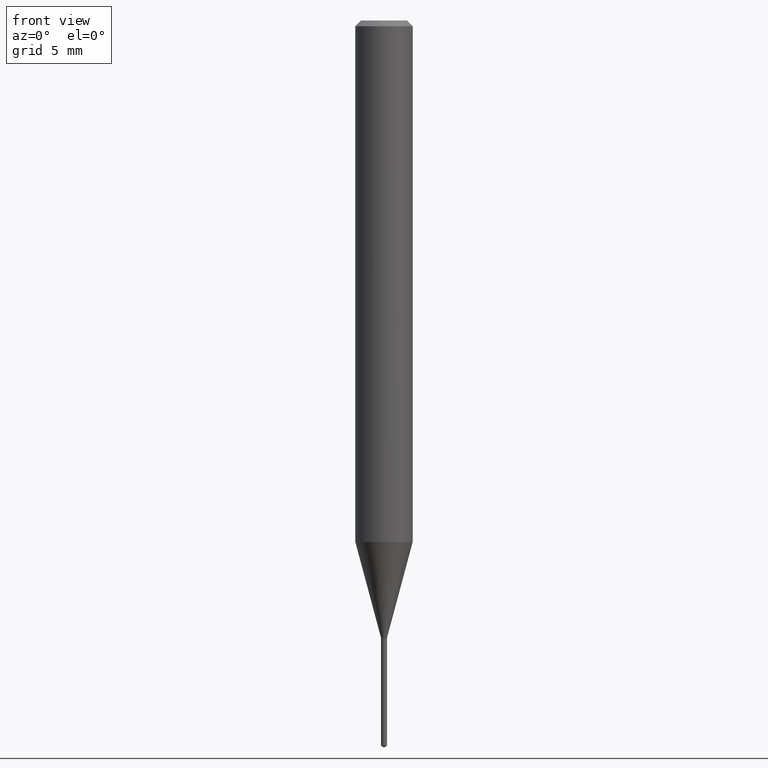
[diagram: clean part render]
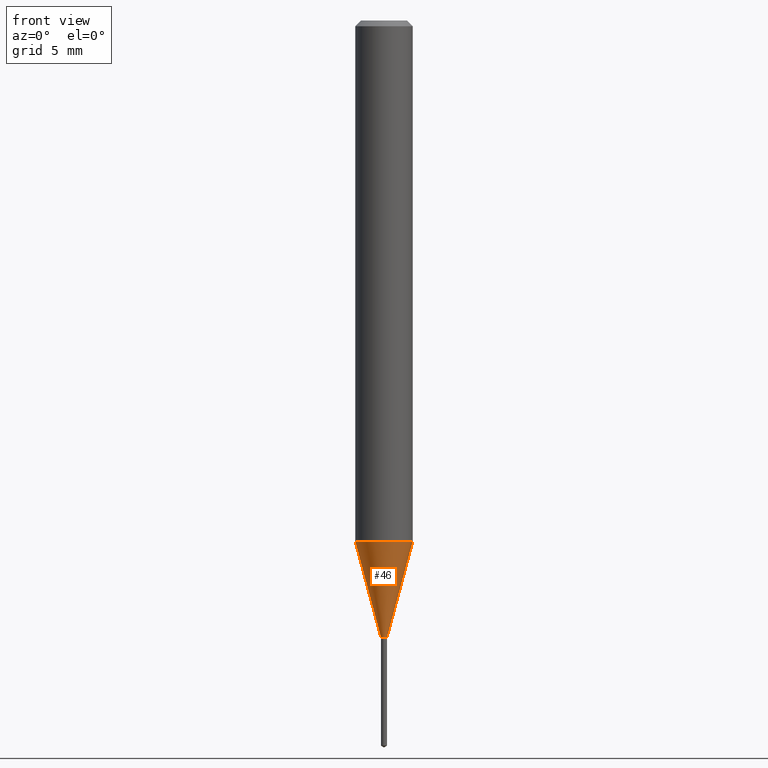
[diagram: same view with one face highlighted and labeled with its STEP entity id]
A machine part, front view. The second image highlights one B-rep face of the part: STEP entity #46.
In plain terms, the highlighted conical surface has half-angle 15 deg.
Its self-contained STEP definition (entity closure, byte-faithful):
#46 = ADVANCED_FACE ( 'NONE', ( #102 ), #434, .T. ) ;
#47 = VECTOR ( 'NONE', #231, 39.37007874015747433 ) ;
#48 = CARTESIAN_POINT ( 'NONE',  ( 3.105256290093886268E-29, -4.433483004063025590E-15, -1.269800000000000040 ) ) ;
#64 = DIRECTION ( 'NONE',  ( -2.445468806185136597E-29, 3.491481338843145583E-15, 1.000000000000000000 ) ) ;
#102 = FACE_OUTER_BOUND ( 'NONE', #458, .T. ) ;
#133 = EDGE_CURVE ( 'NONE', #440, #289, #383, .T. ) ;
#139 = VERTEX_POINT ( 'NONE', #184 ) ;
#184 = CARTESIAN_POINT ( 'NONE',  ( -0.006300000000000000044, -4.391162848647330369E-15, -1.269800000000000040 ) ) ;
#191 = DIRECTION ( 'NONE',  ( -0.2588190451025213501, 5.211531920934551042E-15, 0.9659258262890682012 ) ) ;
#197 = ORIENTED_EDGE ( 'NONE', *, *, #445, .T. ) ;
#198 = DIRECTION ( 'NONE',  ( 1.000000000000000000, -6.982962677686194135E-15, 0.000000000000000000 ) ) ;
#204 = AXIS2_PLACEMENT_3D ( 'NONE', #48, #455, #198 ) ;
#206 = CARTESIAN_POINT ( 'NONE',  ( 3.105256290093886268E-29, -4.433483004063025590E-15, -1.269800000000000040 ) ) ;
#210 = DIRECTION ( 'NONE',  ( 1.000000000000000000, -6.982962677686194135E-15, 0.000000000000000000 ) ) ;
#221 = DIRECTION ( 'NONE',  ( -2.445468806185136597E-29, 3.491481338843145583E-15, 1.000000000000000000 ) ) ;
#223 = AXIS2_PLACEMENT_3D ( 'NONE', #206, #64, #210 ) ;
#231 = DIRECTION ( 'NONE',  ( 0.2588190451025213501, 1.565188264969621968E-15, 0.9659258262890682012 ) ) ;
#243 = CARTESIAN_POINT ( 'NONE',  ( -0.006300000000000000044, -4.388718811710139476E-15, -1.269800000000000040 ) ) ;
#246 = ORIENTED_EDGE ( 'NONE', *, *, #133, .F. ) ;
#261 = CARTESIAN_POINT ( 'NONE',  ( 0.006300000000000000044, -4.477475668932449058E-15, -1.269800000000000040 ) ) ;
#264 = DIRECTION ( 'NONE',  ( 1.000000000000000000, -6.982962677686264344E-15, 0.000000000000000000 ) ) ;
#269 = VERTEX_POINT ( 'NONE', #261 ) ;
#270 = CARTESIAN_POINT ( 'NONE',  ( 0.006300000000000000044, -4.477475668932449058E-15, -1.269800000000000040 ) ) ;
#277 = ORIENTED_EDGE ( 'NONE', *, *, #323, .F. ) ;
#289 = VERTEX_POINT ( 'NONE', #446 ) ;
#295 = CARTESIAN_POINT ( 'NONE',  ( 2.623827410402727989E-29, -3.746130155737801060E-15, -1.072934319900741729 ) ) ;
#300 = CARTESIAN_POINT ( 'NONE',  ( -0.05905000000000014404, -3.326554670271460778E-15, -1.072934319900741729 ) ) ;
#305 = LINE ( 'NONE', #243, #466 ) ;
#323 = EDGE_CURVE ( 'NONE', #139, #440, #305, .T. ) ;
#330 = EDGE_CURVE ( 'NONE', #269, #289, #338, .T. ) ;
#331 = AXIS2_PLACEMENT_3D ( 'NONE', #295, #221, #264 ) ;
#338 = LINE ( 'NONE', #270, #47 ) ;
#347 = ORIENTED_EDGE ( 'NONE', *, *, #330, .T. ) ;
#383 = CIRCLE ( 'NONE', #331, 0.05905000000000013710 ) ;
#417 = CIRCLE ( 'NONE', #204, 0.006300000000000000044 ) ;
#434 = CONICAL_SURFACE ( 'NONE', #223, 0.006300000000000000044, 0.2617993877991500740 ) ;
#440 = VERTEX_POINT ( 'NONE', #300 ) ;
#445 = EDGE_CURVE ( 'NONE', #139, #269, #417, .T. ) ;
#446 = CARTESIAN_POINT ( 'NONE',  ( 0.05905000000000014404, -4.158474101855175191E-15, -1.072934319900741729 ) ) ;
#455 = DIRECTION ( 'NONE',  ( -2.445468806185136597E-29, 3.491481338843145583E-15, 1.000000000000000000 ) ) ;
#458 = EDGE_LOOP ( 'NONE', ( #277, #197, #347, #246 ) ) ;
#466 = VECTOR ( 'NONE', #191, 39.37007874015747433 ) ;